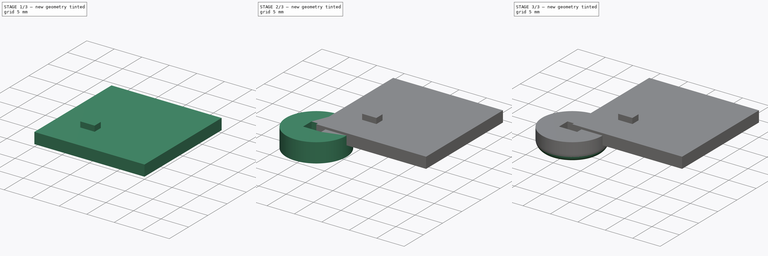
[diagram: build sequence overview — one tinted view per stage of 3, left to right]
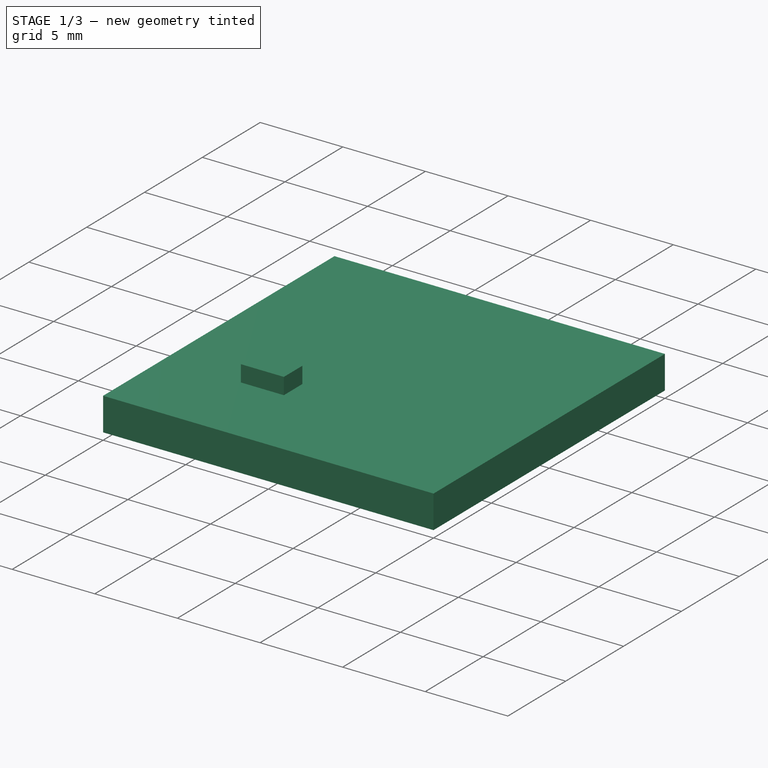
[diagram: stage 1 of 3 — iso view after this stage's code; geometry added in this stage tinted green]
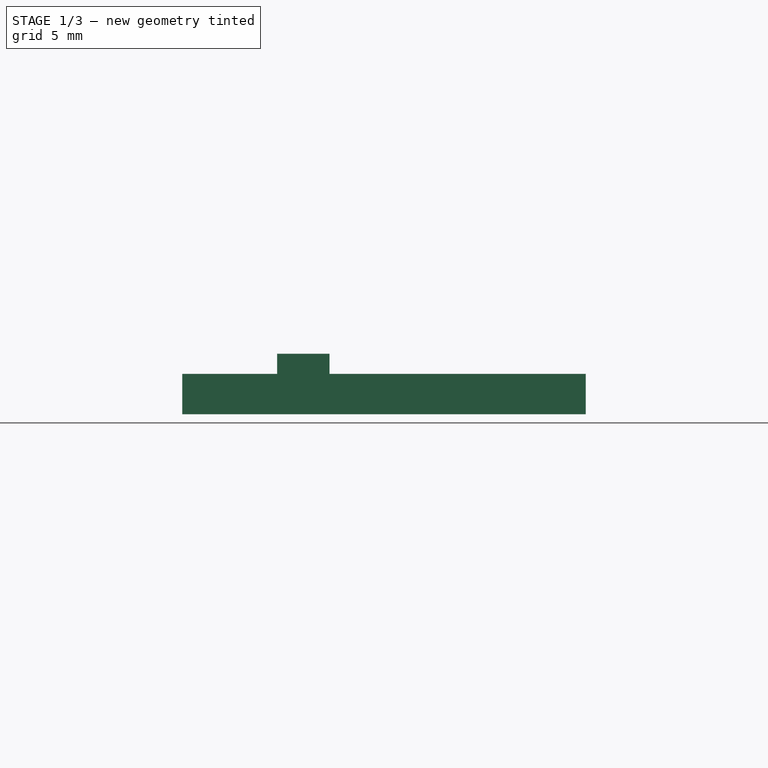
[diagram: stage 1 of 3 — front view after this stage's code; geometry added in this stage tinted green]
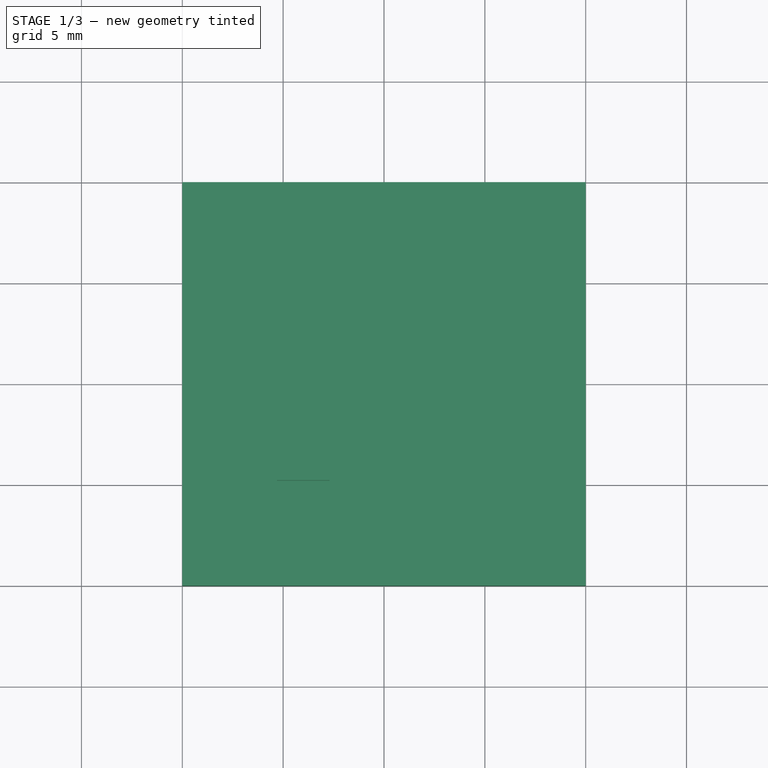
[diagram: stage 1 of 3 — top view after this stage's code; geometry added in this stage tinted green]
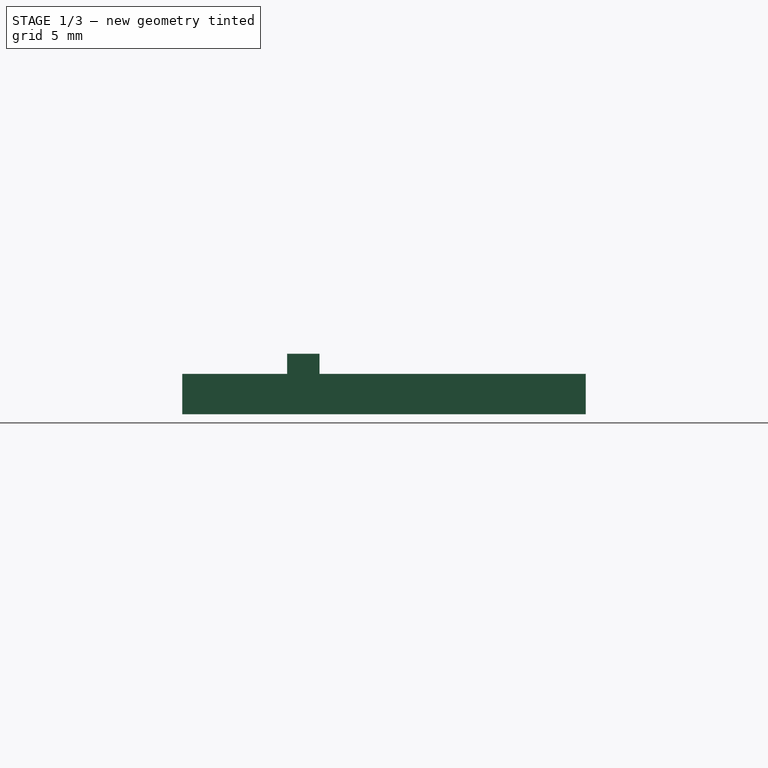
[diagram: stage 1 of 3 — right view after this stage's code; geometry added in this stage tinted green]
FCSTD DOCUMENT  (FreeCAD 0.16R6706 (Git))
Label: Fuse Button Cap
License: All rights reserved
LicenseURL: http://en.wikipedia.org/wiki/All_rights_reserved
objects: Sketcher::SketchObject×3, PartDesign::Pad×2, Part::Cylinder×1, PartDesign::Pocket×1, PartDesign::Fillet×1, Part::Box×1
note: 12 computed .brp shape members not serialized (recipe doc carries the construction recipe); baked Part::Feature solids carry a one-line shape summary decoded from their .brp

FEATURE [Part::Box] Box  label="Cube"
  Height = 2
  Length = 20
  Width = 20
FEATURE [Sketcher::SketchObject] Sketch002
  Placement = pos=(0,0,2) rot=(0,0,1;0rad)
  Support = -> Box [Face6]
  sketch-geometry (7):
    g0: LineSegment StartX=4.7 StartY=6.8 StartZ=0 EndX=7.3 EndY=6.8 EndZ=0
    g1: LineSegment StartX=7.3 StartY=6.8 StartZ=0 EndX=7.3 EndY=5.2 EndZ=0
    g2: LineSegment StartX=7.3 StartY=5.2 StartZ=0 EndX=4.7 EndY=5.2 EndZ=0
    g3: LineSegment StartX=4.7 StartY=5.2 StartZ=0 EndX=4.7 EndY=6.8 EndZ=0
    g4: LineSegment [constr] StartX=4.7 StartY=6.8 StartZ=0 EndX=6 EndY=6 EndZ=0
    g5: LineSegment [constr] StartX=6 StartY=6 StartZ=0 EndX=7.3 EndY=5.2 EndZ=0
    g6: LineSegment [constr] StartX=6 StartY=6 StartZ=0 EndX=0 EndY=0 EndZ=0
  constraints (19):
    c: Coincident(g0,g1)
    c: Coincident(g1,g2)
    c: Coincident(g2,g3)
    c: Coincident(g3,g0)
    c: Horizontal(g0)
    c: Horizontal(g2)
    c: Vertical(g1)
    c: Vertical(g3)
    c: DistanceX(g0,g0) = 2.6
    c: DistanceY(g1,g1) = 1.6
    c: Coincident(g4,g0)
    c: Coincident(g5,g4)
    c: Coincident(g5,g1)
    c: Parallel(g5,g4)
    c: Equal(g5,g4)
    c: Coincident(g6,g4)
    c: Coincident(g6,g-1)
    c: Angle(g6,g-2) = 0.785398
    c: DistanceX(g-1,g4) = 6
FEATURE [PartDesign::Pad] Pad001
  Length = 1
  Length2 = 100
  Sketch = -> Sketch002
  Type = 0
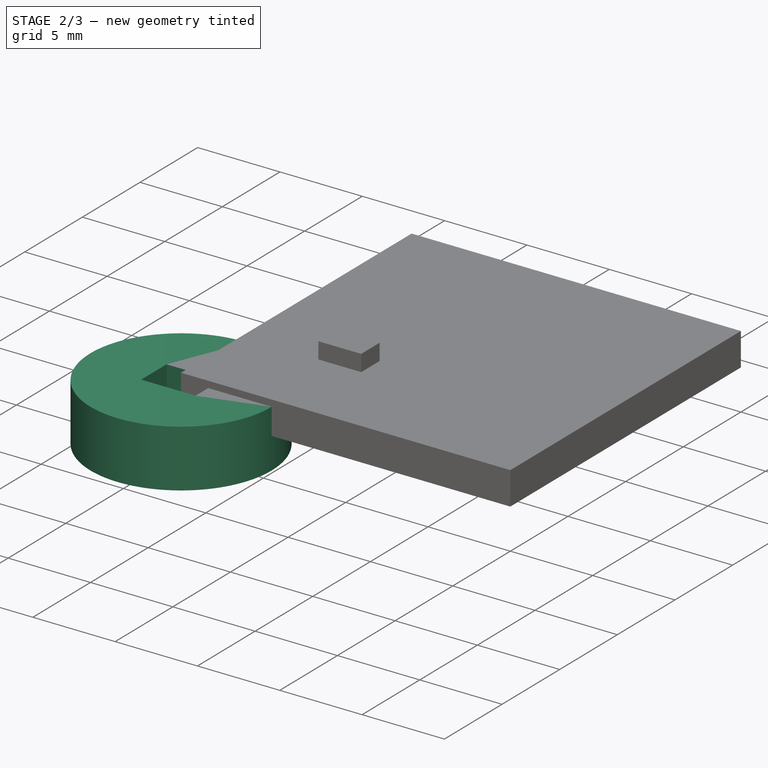
[diagram: stage 2 of 3 — iso view after this stage's code; geometry added in this stage tinted green]
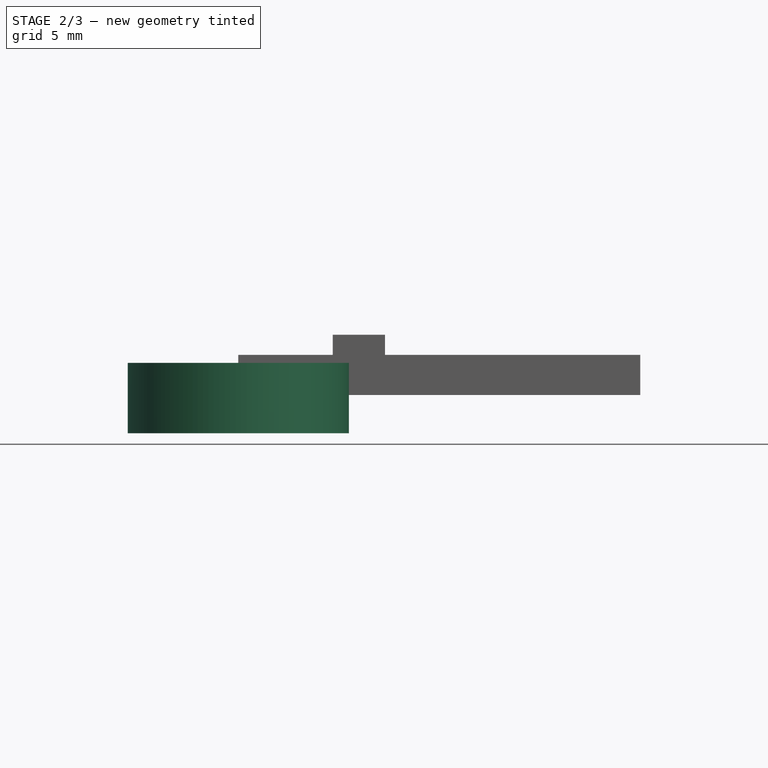
[diagram: stage 2 of 3 — front view after this stage's code; geometry added in this stage tinted green]
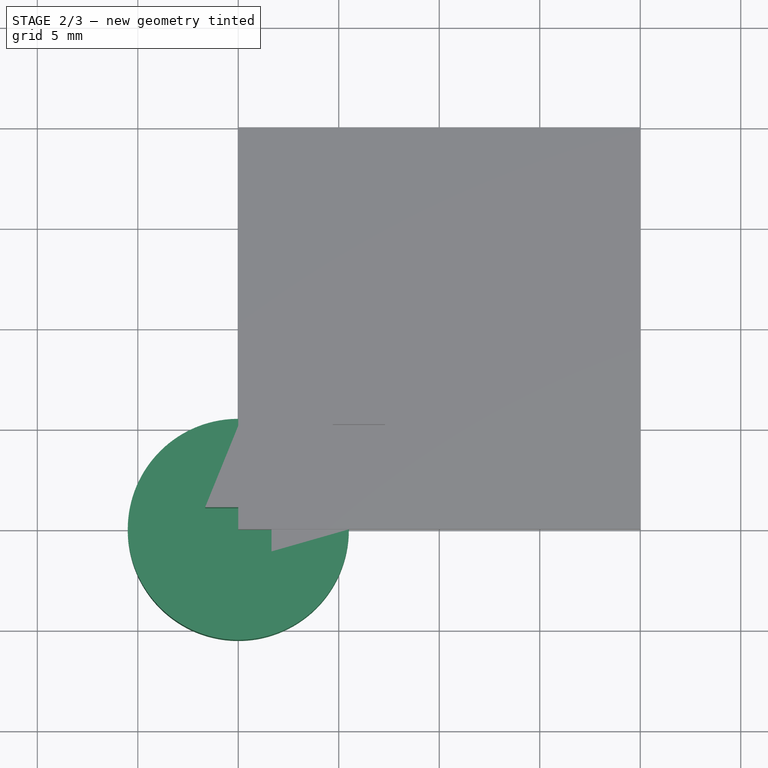
[diagram: stage 2 of 3 — top view after this stage's code; geometry added in this stage tinted green]
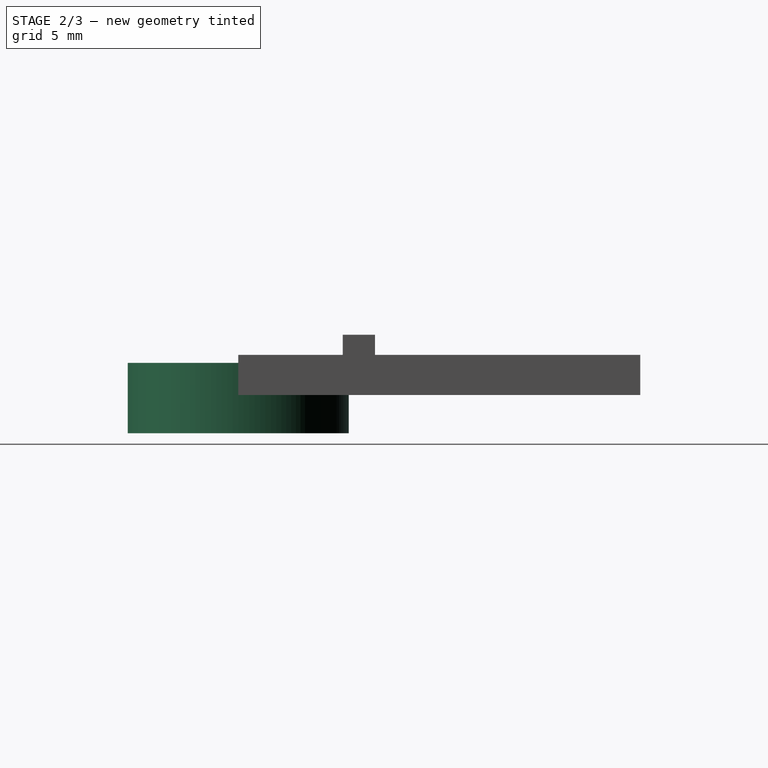
[diagram: stage 2 of 3 — right view after this stage's code; geometry added in this stage tinted green]
FEATURE [Part::Cylinder] Cylinder
  Angle = 360
  Height = 3.5
  Placement = pos=(0,0,-1.9) rot=(0,0,1;0rad)
  Radius = 5.5
FEATURE [Sketcher::SketchObject] Sketch
  Placement = pos=(0,0,1.6) rot=(0,0,1;0rad)
  Support = -> Cylinder [Face2]
  expr: Constraints[8] = 3.3
  sketch-geometry (4):
    g0: LineSegment StartX=-1.65 StartY=1.1 StartZ=0 EndX=1.65 EndY=1.1 EndZ=0
    g1: LineSegment StartX=1.65 StartY=1.1 StartZ=0 EndX=1.65 EndY=-1.1 EndZ=0
    g2: LineSegment StartX=1.65 StartY=-1.1 StartZ=0 EndX=-1.65 EndY=-1.1 EndZ=0
    g3: LineSegment StartX=-1.65 StartY=-1.1 StartZ=0 EndX=-1.65 EndY=1.1 EndZ=0
  constraints (11):
    c: Coincident(g0,g1)
    c: Coincident(g1,g2)
    c: Coincident(g2,g3)
    c: Coincident(g3,g0)
    c: Horizontal(g0)
    c: Horizontal(g2)
    c: Vertical(g1)
    c: Vertical(g3)
    c: DistanceX(g0,g0) = 3.3
    c: DistanceY(g1,g1) = 2.2
    c: Symmetric(g0,g1,g-1)
FEATURE [PartDesign::Pocket] Pocket
  Length = 3
  Placement = pos=(0,0,-1.9) rot=(0,0,1;0rad)
  Sketch = -> Sketch
  Type = 0
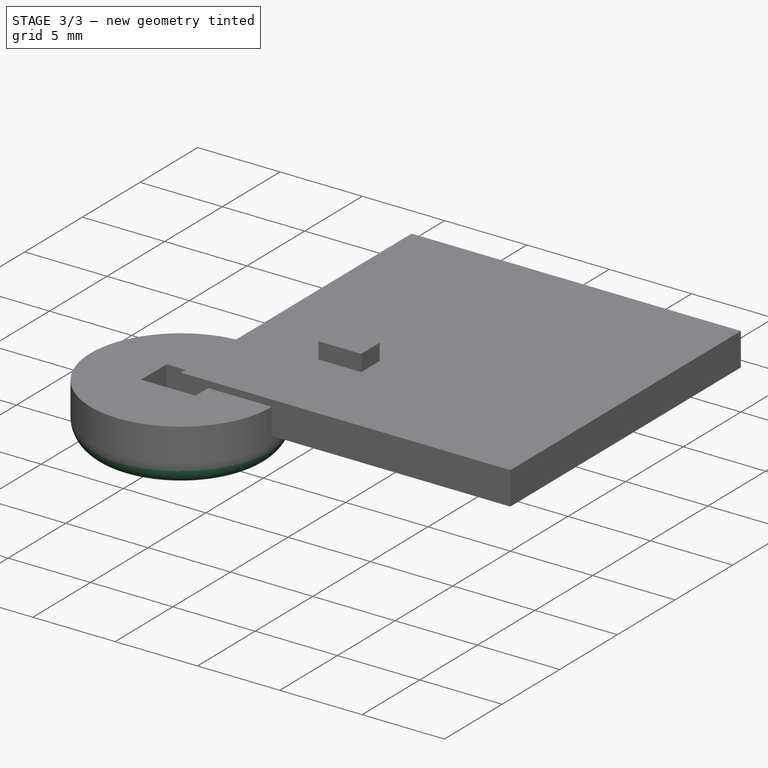
[diagram: stage 3 of 3 — iso view after this stage's code; geometry added in this stage tinted green]
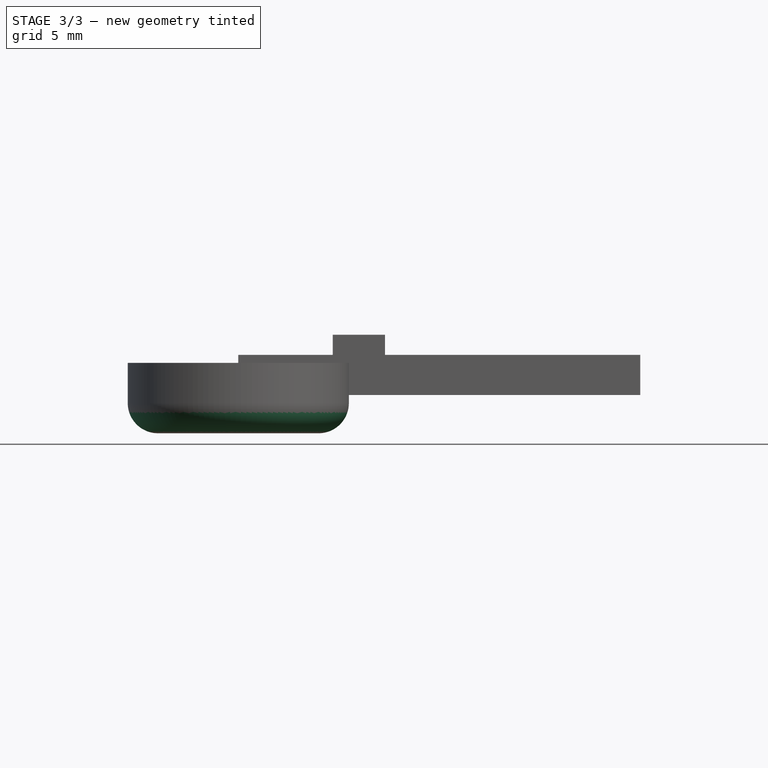
[diagram: stage 3 of 3 — front view after this stage's code; geometry added in this stage tinted green]
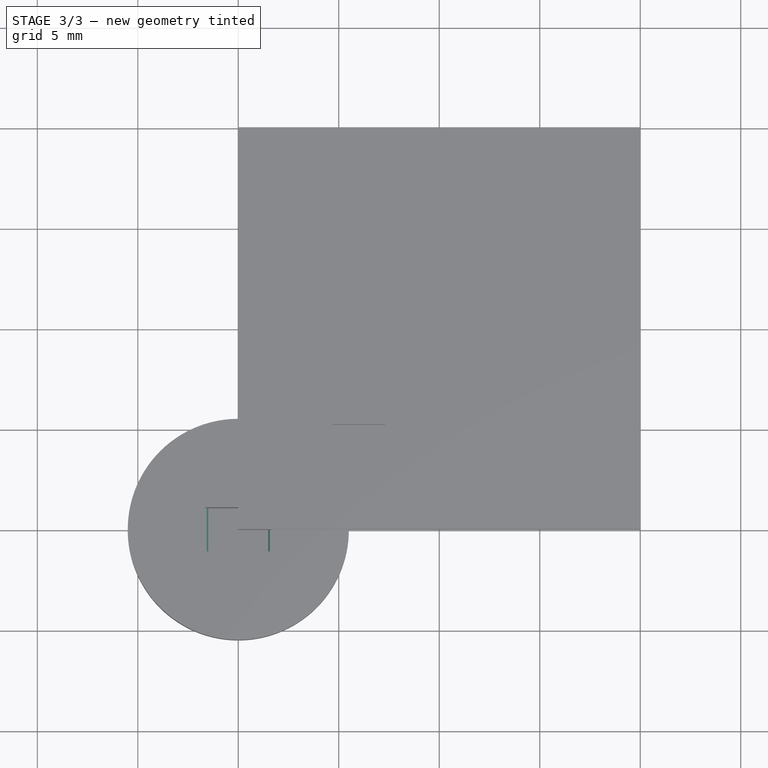
[diagram: stage 3 of 3 — top view after this stage's code; geometry added in this stage tinted green]
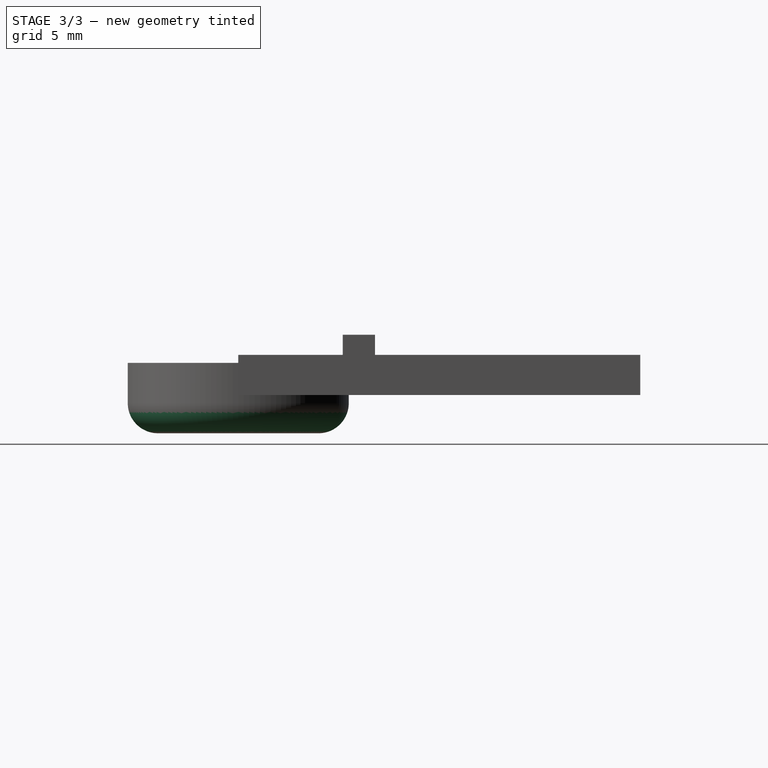
[diagram: stage 3 of 3 — right view after this stage's code; geometry added in this stage tinted green]
FEATURE [Sketcher::SketchObject] Sketch001
  Placement = pos=(0,1.1,0.1) rot=(-1,0,0;4.71239rad)
  sketch-geometry (4):
    g0: LineSegment StartX=-1.6 StartY=0.1 StartZ=0 EndX=-1.6 EndY=-0.1 EndZ=0
    g1: LineSegment StartX=1.6 StartY=0.1 StartZ=0 EndX=1.6 EndY=-0.1 EndZ=0
    g2: ArcOfCircle CenterX=-1.6 CenterY=0 CenterZ=0 NormalX=0 NormalY=0 NormalZ=1 Radius=0.1 StartAngle=4.71239 EndAngle=7.85398
    g3: ArcOfCircle CenterX=1.6 CenterY=0 CenterZ=0 NormalX=0 NormalY=0 NormalZ=1 Radius=0.1 StartAngle=1.5708 EndAngle=4.71239
  constraints (13):
    c: Vertical(g1)
    c: Vertical(g0)
    c: Coincident(g2,g0)
    c: Coincident(g2,g0)
    c: PointOnObject(g2,g0)
    c: Coincident(g3,g1)
    c: Coincident(g3,g1)
    c: PointOnObject(g3,g1)
    c: Radius(g3) = 0.1
    c: Equal(g3,g2)
    c: DistanceX(g0,g1) = 3.2
    c: Symmetric(g3,g2,g-2)
    c: PointOnObject(g3,g-1)
FEATURE [PartDesign::Pad] Pad
  Length = 2.4
  Length2 = 100
  Placement = pos=(0,1.1,0.1) rot=(-1,0,0;4.71239rad)
  Sketch = -> Sketch001
  Type = 0
FEATURE [PartDesign::Fillet] Fillet
  Base = -> Pocket [Edge3]
  Placement = pos=(0,0,-1.9) rot=(0,0,1;0rad)
  Radius = 1.5
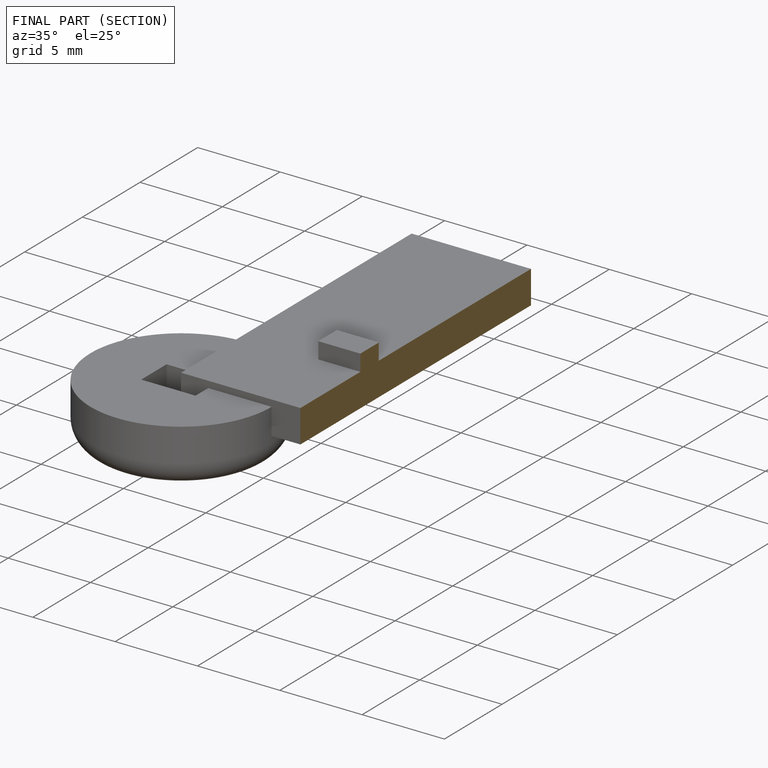
[diagram: finished part — half-section view (interior)]
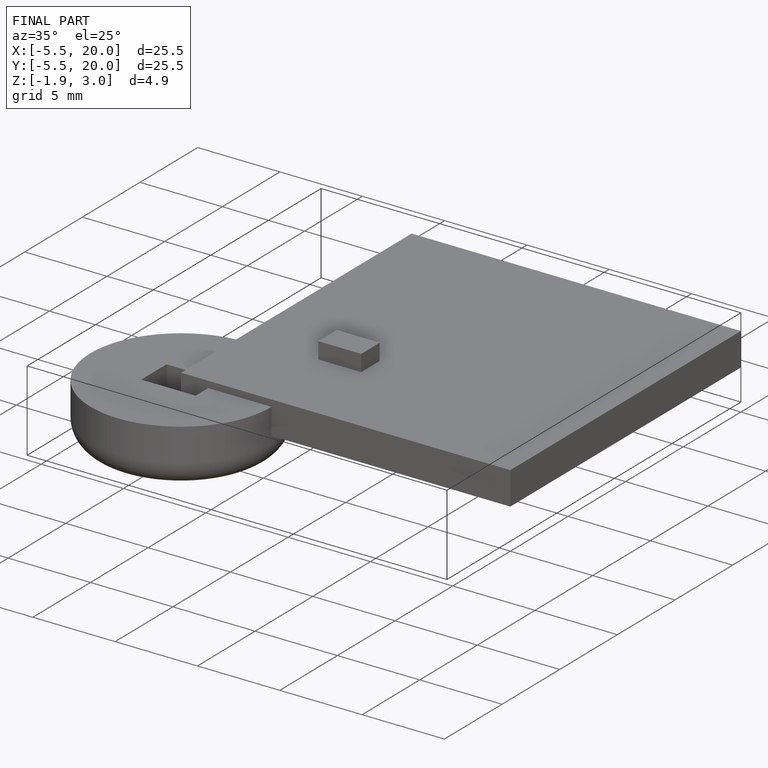
[diagram: finished part — iso view with bounding-box wireframe]
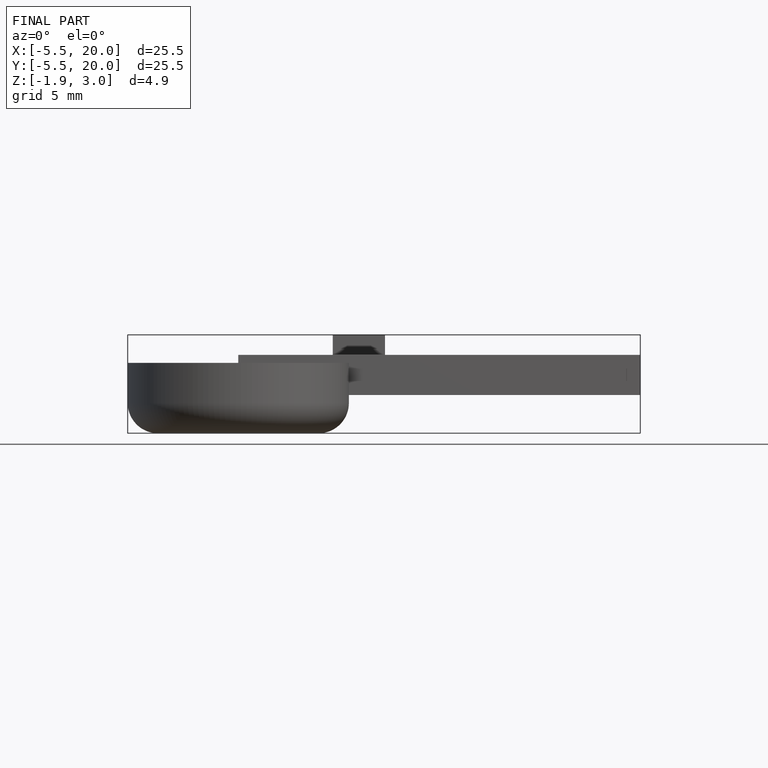
[diagram: finished part — front view with bounding-box wireframe]
